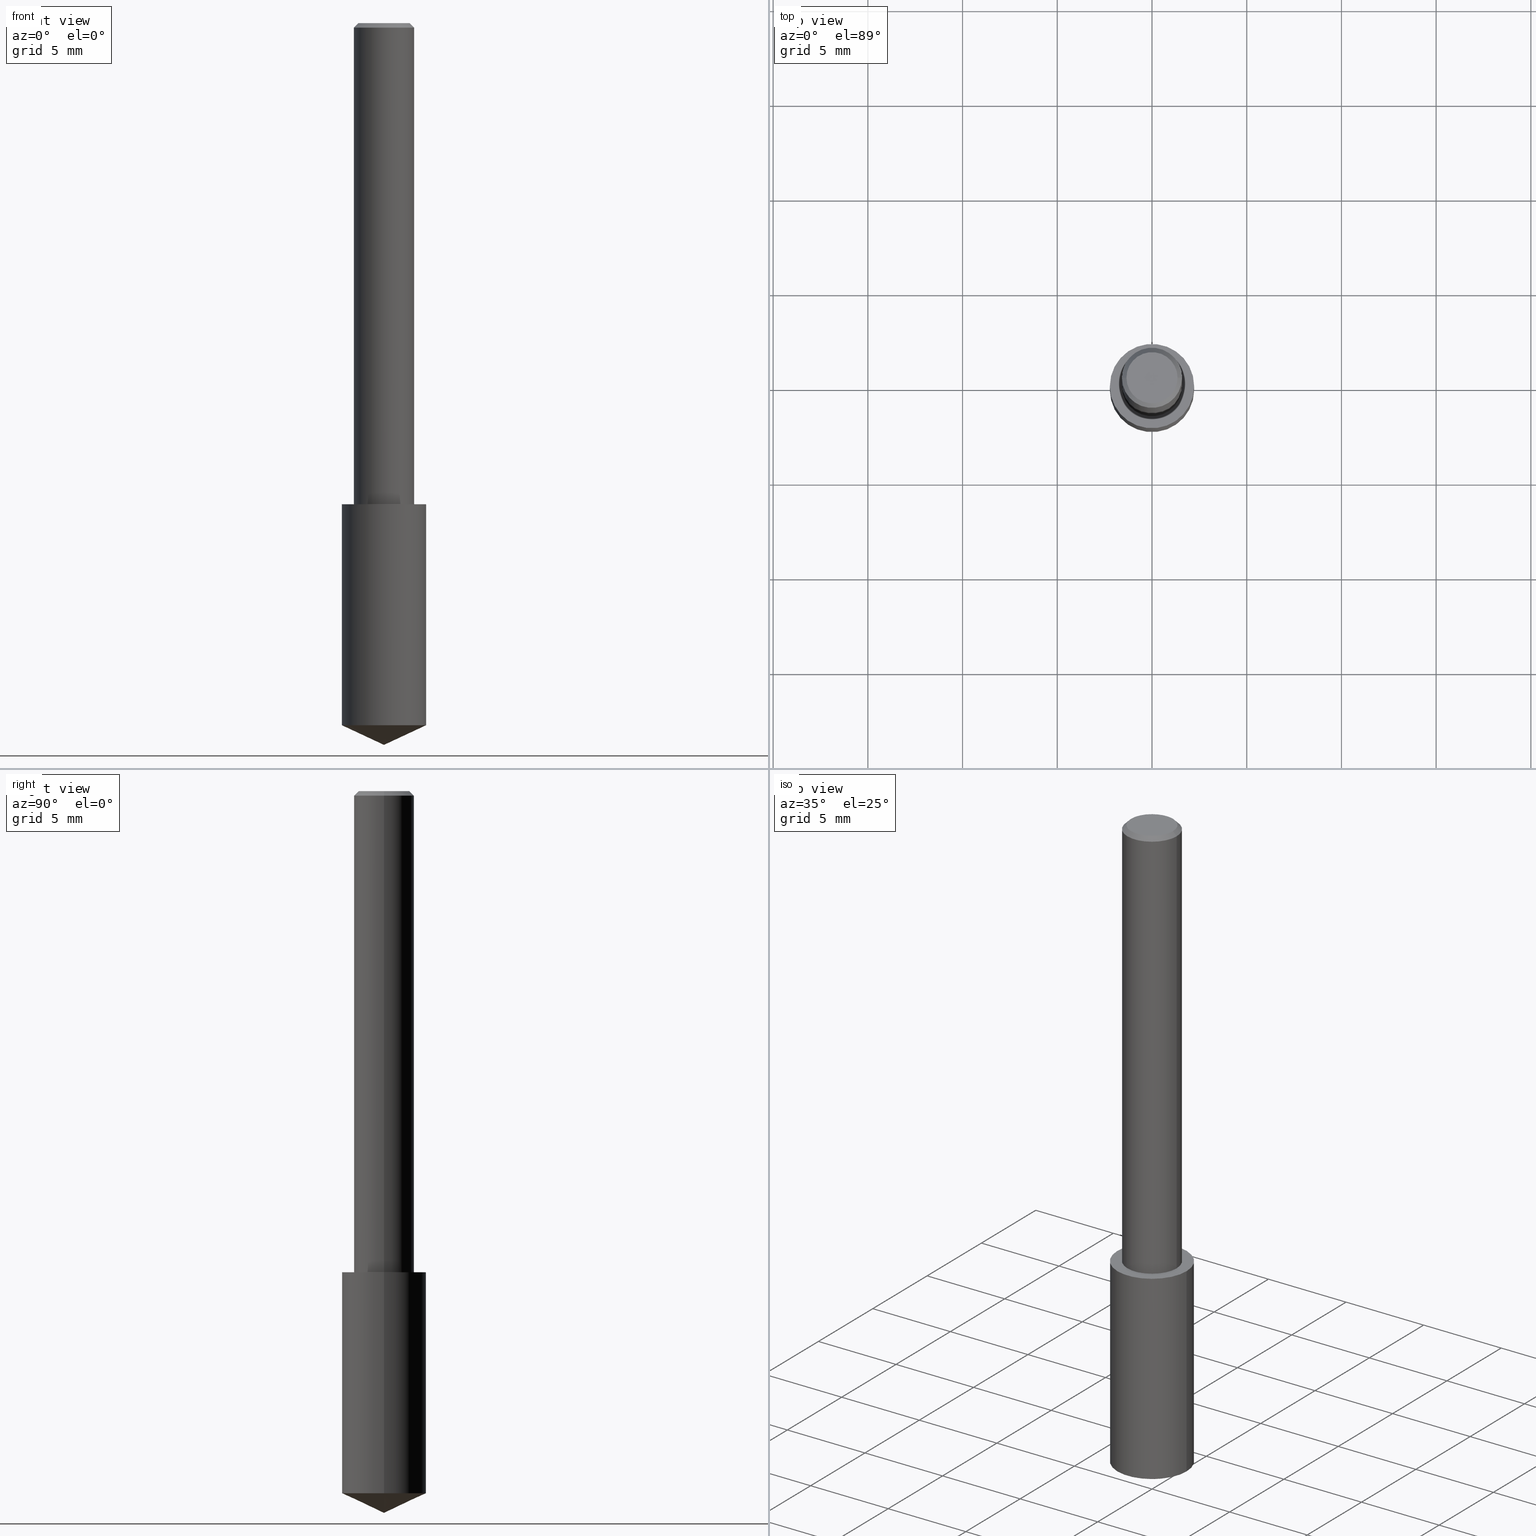
[diagram: canonical four-view strip — front | top / right | iso, engineering-drawing reading convention]
A machine part, canonical four-view strip (front | top / right | iso — engineering-drawing reading convention). The complete STEP part file that produces these views, byte-faithful:
ISO-10303-21;
HEADER;
FILE_DESCRIPTION (( 'STEP AP203' ),
    '1' );
FILE_NAME ('06111.STEP',
    '2024-04-30T18:21:00',
    ( '' ),
    ( '' ),
    'SwSTEP 2.0',
    'SolidWorks 2023',
    '' );
FILE_SCHEMA (( 'CONFIG_CONTROL_DESIGN' ));
ENDSEC;

DATA;
#1 = CARTESIAN_POINT ( 'NONE',  ( 0.05312499999999999861, -4.129888592719939842E-16, 3.061617000609493422E-21 ) ) ;
#2 = CALENDAR_DATE ( 2024, 30, 4 ) ;
#3 = PLANE ( 'NONE',  #82 ) ;
#4 = AXIS2_PLACEMENT_3D ( 'NONE', #339, #28, #138 ) ;
#5 = DIRECTION ( 'NONE',  ( -2.445468806185136597E-29, 3.491481338843145583E-15, 1.000000000000000000 ) ) ;
#6 = EDGE_CURVE ( 'NONE', #238, #34, #187, .T. ) ;
#7 = PERSON_AND_ORGANIZATION ( #33, #151 ) ;
#8 = CARTESIAN_POINT ( 'NONE',  ( 0.08759999999999999731, -4.103188869408462916E-15, -1.000000000000000222 ) ) ;
#9 = ADVANCED_FACE ( 'NONE', ( #156 ), #109, .T. ) ;
#10 = ORIENTED_EDGE ( 'NONE', *, *, #300, .T. ) ;
#11 = CONICAL_SURFACE ( 'NONE', #294, 84.42940631927488937, 1.134464013796318449 ) ;
#12 = ORIENTED_EDGE ( 'NONE', *, *, #62, .F. ) ;
#13 = CIRCLE ( 'NONE', #236, 0.06250000000000000000 ) ;
#14 = CC_DESIGN_APPROVAL ( #330, ( #118 ) ) ;
#15 = PRODUCT_DEFINITION ( 'UNKNOWN', '', #144, #289 ) ;
#16 = ORIENTED_EDGE ( 'NONE', *, *, #117, .F. ) ;
#17 = DIRECTION ( 'NONE',  ( -2.445468806185136877E-29, 3.491481338843145188E-15, 1.000000000000000000 ) ) ;
#18 = CARTESIAN_POINT ( 'NONE',  ( -0.08759999999999995568, -4.472164618712027230E-15, -1.459151449145622781 ) ) ;
#19 = DIRECTION ( 'NONE',  ( 1.000000000000000000, -6.982962677686269077E-15, 0.000000000000000000 ) ) ;
#20 = ORIENTED_EDGE ( 'NONE', *, *, #185, .T. ) ;
#21 = CARTESIAN_POINT ( 'NONE',  ( 0.06250000000000006939, -4.364351673553921624E-16, 3.047610484872463374E-30 ) ) ;
#22 = ORIENTED_EDGE ( 'NONE', *, *, #64, .T. ) ;
#23 = APPROVAL_STATUS ( 'not_yet_approved' ) ;
#24 = EDGE_CURVE ( 'NONE', #59, #124, #248, .T. ) ;
#25 = AXIS2_PLACEMENT_3D ( 'NONE', #91, #143, #315 ) ;
#26 = FACE_OUTER_BOUND ( 'NONE', #283, .T. ) ;
#27 = PLANE ( 'NONE',  #57 ) ;
#28 = DIRECTION ( 'NONE',  ( -2.445468806185136597E-29, 3.491481338843145583E-15, 1.000000000000000000 ) ) ;
#29 = DIRECTION ( 'NONE',  ( 1.000000000000000000, -6.982962677686266711E-15, 4.876176775795935793E-29 ) ) ;
#30 = VECTOR ( 'NONE', #17, 39.37007874015748143 ) ;
#31 = AXIS2_PLACEMENT_3D ( 'NONE', #288, #81, #252 ) ;
#32 = EDGE_LOOP ( 'NONE', ( #121, #100, #55, #194 ) ) ;
#33 = PERSON ( 'UNSPECIFIED', 'UNSPECIFIED', 'UNSPECIFIED', ('UNSPECIFIED'), ('UNSPECIFIED'), ('UNSPECIFIED') ) ;
#34 = VERTEX_POINT ( 'NONE', #105 ) ;
#35 = AXIS2_PLACEMENT_3D ( 'NONE', #312, #314, #293 ) ;
#36 = AXIS2_PLACEMENT_3D ( 'NONE', #301, #97, #275 ) ;
#37 = ADVANCED_FACE ( 'NONE', ( #78 ), #320, .T. ) ;
#38 = CLOSED_SHELL ( 'NONE', ( #245, #193, #166, #67, #213 ) ) ;
#39 = APPROVAL_DATE_TIME ( #268, #287 ) ;
#40 = AXIS2_PLACEMENT_3D ( 'NONE', #243, #223, #305 ) ;
#41 = ORIENTED_EDGE ( 'NONE', *, *, #101, .F. ) ;
#42 = EDGE_CURVE ( 'NONE', #126, #34, #115, .T. ) ;
#43 = LINE ( 'NONE', #21, #47 ) ;
#44 = DIRECTION ( 'NONE',  ( -2.445468806185136597E-29, 3.491481338843145583E-15, 1.000000000000000000 ) ) ;
#45 = EDGE_LOOP ( 'NONE', ( #149, #215, #133, #16 ) ) ;
#46 = VERTEX_POINT ( 'NONE', #89 ) ;
#47 = VECTOR ( 'NONE', #147, 39.37007874015748143 ) ;
#48 = EDGE_LOOP ( 'NONE', ( #114, #119, #198 ) ) ;
#49 = CARTESIAN_POINT ( 'NONE',  ( 3.534303999157150341E-29, -1.932207369856694320E-15, -1.000000000000000222 ) ) ;
#50 = LINE ( 'NONE', #222, #191 ) ;
#51 = EDGE_CURVE ( 'NONE', #219, #126, #161, .T. ) ;
#52 = SECURITY_CLASSIFICATION_LEVEL ( 'unclassified' ) ;
#53 = AXIS2_PLACEMENT_3D ( 'NONE', #272, #132, #218 ) ;
#54 = DIRECTION ( 'NONE',  ( -1.000000000000000000, 6.982962677686265922E-15, -4.876176775795935793E-29 ) ) ;
#55 = ORIENTED_EDGE ( 'NONE', *, *, #24, .T. ) ;
#56 = CARTESIAN_POINT ( 'NONE',  ( 2.292627005798580623E-31, -3.273263755165470184E-17, -0.009375000000000060368 ) ) ;
#57 = AXIS2_PLACEMENT_3D ( 'NONE', #324, #69, #71 ) ;
#58 = DIRECTION ( 'NONE',  ( -2.445468806185136597E-29, 3.491481338843145583E-15, 1.000000000000000000 ) ) ;
#59 = VERTEX_POINT ( 'NONE', #163 ) ;
#60 = FACE_OUTER_BOUND ( 'NONE', #45, .T. ) ;
#61 = ORIENTED_EDGE ( 'NONE', *, *, #42, .F. ) ;
#62 = EDGE_CURVE ( 'NONE', #173, #59, #137, .T. ) ;
#63 = ORIENTED_EDGE ( 'NONE', *, *, #24, .F. ) ;
#64 = EDGE_CURVE ( 'NONE', #46, #173, #122, .T. ) ;
#65 = LENGTH_MEASURE_WITH_UNIT ( LENGTH_MEASURE( 0.02539999999999999897 ), #332 );
#66 =( CONVERSION_BASED_UNIT ( 'INCH', #65 ) LENGTH_UNIT ( ) NAMED_UNIT ( #278 ) );
#67 = ADVANCED_FACE ( 'NONE', ( #60 ), #96, .T. ) ;
#68 = AXIS2_PLACEMENT_3D ( 'NONE', #299, #242, #325 ) ;
#69 = DIRECTION ( 'NONE',  ( -2.438088387897960049E-29, 3.491481338843145188E-15, 1.000000000000000000 ) ) ;
#70 = CYLINDRICAL_SURFACE ( 'NONE', #36, 0.08759999999999999731 ) ;
#71 = DIRECTION ( 'NONE',  ( 1.000000000000000000, -6.982962677686265922E-15, 4.876176775795935793E-29 ) ) ;
#72 = LINE ( 'NONE', #186, #159 ) ;
#73 = ORIENTED_EDGE ( 'NONE', *, *, #206, .F. ) ;
#74 = EDGE_LOOP ( 'NONE', ( #10, #94, #63, #262 ) ) ;
#75 = VECTOR ( 'NONE', #210, 39.37007874015748143 ) ;
#76 = LOCAL_TIME ( 14, 21, 0.000000000000000000, #338 ) ;
#77 = EDGE_CURVE ( 'NONE', #173, #46, #141, .T. ) ;
#78 = FACE_OUTER_BOUND ( 'NONE', #183, .T. ) ;
#79 = PERSON_AND_ORGANIZATION ( #33, #151 ) ;
#80 = DIRECTION ( 'NONE',  ( -1.000000000000000000, 6.982962677686266711E-15, 0.000000000000000000 ) ) ;
#81 = DIRECTION ( 'NONE',  ( 2.445468806185136597E-29, -3.491481338843145583E-15, -1.000000000000000000 ) ) ;
#82 = AXIS2_PLACEMENT_3D ( 'NONE', #178, #112, #54 ) ;
#83 = LINE ( 'NONE', #102, #273 ) ;
#84 = DATE_AND_TIME ( #309, #76 ) ;
#85 = APPROVAL_DATE_TIME ( #84, #259 ) ;
#86 = CARTESIAN_POINT ( 'NONE',  ( 2.445468806185136877E-29, -3.491481338843145977E-15, -1.000000000000000222 ) ) ;
#87 = DIRECTION ( 'NONE',  ( 2.445468806185136597E-29, -3.491481338843145583E-15, -1.000000000000000000 ) ) ;
#88 = ORIENTED_EDGE ( 'NONE', *, *, #6, .T. ) ;
#89 = CARTESIAN_POINT ( 'NONE',  ( -0.05312499999999999861, 3.873362110279099094E-16, 3.061616995216862494E-21 ) ) ;
#90 = VERTEX_POINT ( 'NONE', #227 ) ;
#91 = CARTESIAN_POINT ( 'NONE',  ( 0.000000000000000000, 0.000000000000000000, 0.000000000000000000 ) ) ;
#92 = LINE ( 'NONE', #125, #95 ) ;
#93 = DIRECTION ( 'NONE',  ( -0.7071067811865453523, 2.468850131082234184E-15, -0.7071067811865496822 ) ) ;
#94 = ORIENTED_EDGE ( 'NONE', *, *, #267, .T. ) ;
#95 = VECTOR ( 'NONE', #298, 39.37007874015748143 ) ;
#96 = CYLINDRICAL_SURFACE ( 'NONE', #328, 0.08759999999999999731 ) ;
#97 = DIRECTION ( 'NONE',  ( -2.445468806185136597E-29, 3.491481338843145583E-15, 1.000000000000000000 ) ) ;
#98 = ORIENTED_EDGE ( 'NONE', *, *, #206, .T. ) ;
#99 = ORIENTED_EDGE ( 'NONE', *, *, #267, .F. ) ;
#100 = ORIENTED_EDGE ( 'NONE', *, *, #62, .T. ) ;
#101 = EDGE_CURVE ( 'NONE', #124, #59, #13, .T. ) ;
#102 = CARTESIAN_POINT ( 'NONE',  ( 3.668203209277704895E-29, -5.237222008264718177E-15, -1.500000000000000222 ) ) ;
#103 = DIRECTION ( 'NONE',  ( 1.000000000000000000, -6.982962677686266711E-15, 0.000000000000000000 ) ) ;
#104 = AXIS2_PLACEMENT_3D ( 'NONE', #306, #87, #80 ) ;
#105 = CARTESIAN_POINT ( 'NONE',  ( -0.08759999999999999731, -3.670605260514662288E-15, -1.000000000000000222 ) ) ;
#106 = AXIS2_PLACEMENT_3D ( 'NONE', #49, #220, #195 ) ;
#107 = DIRECTION ( 'NONE',  ( -0.9063077870366517130, 7.915267918739014631E-15, 0.4226182617406955555 ) ) ;
#108 = ADVANCED_FACE ( 'NONE', ( #207 ), #264, .T. ) ;
#109 = CYLINDRICAL_SURFACE ( 'NONE', #217, 0.06250000000000006939 ) ;
#110 = PERSON_AND_ORGANIZATION ( #33, #151 ) ;
#111 = SHAPE_DEFINITION_REPRESENTATION ( #263, #331 ) ;
#112 = DIRECTION ( 'NONE',  ( 2.438088387897960049E-29, -3.491481338843145188E-15, -1.000000000000000000 ) ) ;
#113 = CC_DESIGN_PERSON_AND_ORGANIZATION_ASSIGNMENT ( #7, #135, ( #144 ) ) ;
#114 = ORIENTED_EDGE ( 'NONE', *, *, #170, .F. ) ;
#115 = CIRCLE ( 'NONE', #302, 0.08759999999999999731 ) ;
#116 = ADVANCED_FACE ( 'NONE', ( #226 ), #3, .F. ) ;
#117 = EDGE_CURVE ( 'NONE', #34, #126, #307, .T. ) ;
#118 = SECURITY_CLASSIFICATION ( '', '', #52 ) ;
#119 = ORIENTED_EDGE ( 'NONE', *, *, #146, .T. ) ;
#120 = PERSON_AND_ORGANIZATION_ROLE ( 'design_owner' ) ;
#121 = ORIENTED_EDGE ( 'NONE', *, *, #77, .F. ) ;
#122 = CIRCLE ( 'NONE', #35, 0.05312499999999999861 ) ;
#123 = CC_DESIGN_APPROVAL ( #259, ( #144 ) ) ;
#124 = VERTEX_POINT ( 'NONE', #229 ) ;
#125 = CARTESIAN_POINT ( 'NONE',  ( -0.06250000000000006939, 4.440892098500631092E-16, -3.074334431409319267E-30 ) ) ;
#126 = VERTEX_POINT ( 'NONE', #8 ) ;
#127 = ADVANCED_FACE ( 'NONE', ( #182 ), #237, .T. ) ;
#128 = FACE_OUTER_BOUND ( 'NONE', #334, .T. ) ;
#129 = ORIENTED_EDGE ( 'NONE', *, *, #146, .F. ) ;
#130 = PERSON_AND_ORGANIZATION ( #33, #151 ) ;
#131 = MECHANICAL_CONTEXT ( 'NONE', #319, 'mechanical' ) ;
#132 = DIRECTION ( 'NONE',  ( -2.445468806185136597E-29, 3.491481338843145583E-15, 1.000000000000000000 ) ) ;
#133 = ORIENTED_EDGE ( 'NONE', *, *, #51, .T. ) ;
#134 = PERSON_AND_ORGANIZATION_ROLE ( 'creator' ) ;
#135 = PERSON_AND_ORGANIZATION_ROLE ( 'design_supplier' ) ;
#136 = DIRECTION ( 'NONE',  ( -2.445468806185136597E-29, 3.491481338843145583E-15, 1.000000000000000000 ) ) ;
#137 = LINE ( 'NONE', #260, #296 ) ;
#138 = DIRECTION ( 'NONE',  ( 1.000000000000000000, -6.982962677686266711E-15, 4.876176628004948512E-29 ) ) ;
#139 = APPROVAL_PERSON_ORGANIZATION ( #110, #330, #285 ) ;
#140 = FACE_OUTER_BOUND ( 'NONE', #48, .T. ) ;
#141 = CIRCLE ( 'NONE', #4, 0.05312499999999999861 ) ;
#142 =( GEOMETRIC_REPRESENTATION_CONTEXT ( 3 ) GLOBAL_UNCERTAINTY_ASSIGNED_CONTEXT ( ( #322 ) ) GLOBAL_UNIT_ASSIGNED_CONTEXT ( ( #66, #292, #317 ) ) REPRESENTATION_CONTEXT ( 'NONE', 'WORKASPACE' ) );
#143 = DIRECTION ( 'NONE',  ( -2.445468806185136597E-29, 3.491481338843145583E-15, 1.000000000000000000 ) ) ;
#144 = PRODUCT_DEFINITION_FORMATION_WITH_SPECIFIED_SOURCE ( 'ANY', '', #255, .NOT_KNOWN. ) ;
#145 = EDGE_LOOP ( 'NONE', ( #295, #265 ) ) ;
#146 = EDGE_CURVE ( 'NONE', #316, #219, #83, .T. ) ;
#147 = DIRECTION ( 'NONE',  ( -2.445468806185136877E-29, 3.491481338843145188E-15, 1.000000000000000000 ) ) ;
#148 = CARTESIAN_POINT ( 'NONE',  ( -0.08759999999999999731, -2.869045902317298924E-15, -1.000000000000000222 ) ) ;
#149 = ORIENTED_EDGE ( 'NONE', *, *, #6, .F. ) ;
#150 = CC_DESIGN_DATE_AND_TIME_ASSIGNMENT ( #200, #281, ( #15 ) ) ;
#151 = ORGANIZATION ( 'UNSPECIFIED', 'UNSPECIFIED', '' ) ;
#152 = ORIENTED_EDGE ( 'NONE', *, *, #101, .T. ) ;
#153 = PLANE ( 'NONE',  #106 ) ;
#154 = CARTESIAN_POINT ( 'NONE',  ( 3.668203209277704895E-29, -5.237222008264718177E-15, -1.500000000000000222 ) ) ;
#155 = CARTESIAN_POINT ( 'NONE',  ( -0.06250000000000012490, -1.318017778347335489E-15, -1.000000000000000222 ) ) ;
#156 = FACE_OUTER_BOUND ( 'NONE', #74, .T. ) ;
#157 = CARTESIAN_POINT ( 'NONE',  ( 2.292627005798580623E-31, -3.273263755165470184E-17, -0.009375000000000060368 ) ) ;
#158 = CARTESIAN_POINT ( 'NONE',  ( 2.445468806185137438E-29, -3.491481338843146371E-15, -1.000000000000000222 ) ) ;
#159 = VECTOR ( 'NONE', #93, 39.37007874015748143 ) ;
#160 = DIRECTION ( 'NONE',  ( -2.445468806185136597E-29, 3.491481338843145583E-15, 1.000000000000000000 ) ) ;
#161 = LINE ( 'NONE', #261, #75 ) ;
#162 = ORIENTED_EDGE ( 'NONE', *, *, #290, .T. ) ;
#163 = CARTESIAN_POINT ( 'NONE',  ( 0.06250000000000000000, -4.691678049070463404E-16, -0.009375000000000060368 ) ) ;
#164 = APPROVAL_PERSON_ORGANIZATION ( #282, #259, #203 ) ;
#165 = CALENDAR_DATE ( 2024, 30, 4 ) ;
#166 = ADVANCED_FACE ( 'NONE', ( #140 ), #11, .T. ) ;
#167 = CIRCLE ( 'NONE', #53, 0.08759999999999999731 ) ;
#168 = ORIENTED_EDGE ( 'NONE', *, *, #170, .T. ) ;
#169 = CC_DESIGN_PERSON_AND_ORGANIZATION_ASSIGNMENT ( #130, #201, ( #15 ) ) ;
#170 = EDGE_CURVE ( 'NONE', #316, #238, #50, .T. ) ;
#171 = DIRECTION ( 'NONE',  ( 1.000000000000000000, -6.982962677686264344E-15, 0.000000000000000000 ) ) ;
#172 = CIRCLE ( 'NONE', #228, 0.06250000000000012490 ) ;
#173 = VERTEX_POINT ( 'NONE', #1 ) ;
#174 = COORDINATED_UNIVERSAL_TIME_OFFSET ( 5, 0, .BEHIND. ) ;
#175 = DIRECTION ( 'NONE',  ( -2.445468806185136597E-29, 3.491481338843145583E-15, 1.000000000000000000 ) ) ;
#176 = APPROVAL_STATUS ( 'not_yet_approved' ) ;
#177 = CALENDAR_DATE ( 2024, 30, 4 ) ;
#178 = CARTESIAN_POINT ( 'NONE',  ( -3.743544432386672853E-50, 5.344789307371238476E-36, 1.530808498934197599E-21 ) ) ;
#179 = CONICAL_SURFACE ( 'NONE', #40, 84.42940631927488937, 1.134464013796318449 ) ;
#180 = PERSON_AND_ORGANIZATION_ROLE ( 'classification_officer' ) ;
#181 = PERSON_AND_ORGANIZATION ( #33, #151 ) ;
#182 = FACE_OUTER_BOUND ( 'NONE', #32, .T. ) ;
#183 = EDGE_LOOP ( 'NONE', ( #99, #20, #323, #41 ) ) ;
#184 = VERTEX_POINT ( 'NONE', #155 ) ;
#185 = EDGE_CURVE ( 'NONE', #184, #90, #172, .T. ) ;
#186 = CARTESIAN_POINT ( 'NONE',  ( -0.06250000000000000000, 4.037025298037369984E-16, -0.009375000000000060368 ) ) ;
#187 = LINE ( 'NONE', #148, #30 ) ;
#188 = COORDINATED_UNIVERSAL_TIME_OFFSET ( 5, 0, .BEHIND. ) ;
#189 = APPROVAL_ROLE ( '' ) ;
#190 = CLOSED_SHELL ( 'NONE', ( #127, #9, #199, #37, #108, #116 ) ) ;
#191 = VECTOR ( 'NONE', #107, 39.37007874015748143 ) ;
#192 = ORIENTED_EDGE ( 'NONE', *, *, #64, .F. ) ;
#193 = ADVANCED_FACE ( 'NONE', ( #26 ), #179, .T. ) ;
#194 = ORIENTED_EDGE ( 'NONE', *, *, #290, .F. ) ;
#195 = DIRECTION ( 'NONE',  ( -1.000000000000000000, 6.982962677686265922E-15, -4.876176775795935793E-29 ) ) ;
#196 = EDGE_LOOP ( 'NONE', ( #12, #192, #162, #152 ) ) ;
#197 = CC_DESIGN_APPROVAL ( #287, ( #15 ) ) ;
#198 = ORIENTED_EDGE ( 'NONE', *, *, #247, .F. ) ;
#199 = ADVANCED_FACE ( 'NONE', ( #251 ), #27, .F. ) ;
#200 = DATE_AND_TIME ( #318, #214 ) ;
#201 = PERSON_AND_ORGANIZATION_ROLE ( 'creator' ) ;
#202 = DIRECTION ( 'NONE',  ( 1.000000000000000000, -6.982962677686266711E-15, 0.000000000000000000 ) ) ;
#203 = APPROVAL_ROLE ( '' ) ;
#204 = AXIS2_PLACEMENT_3D ( 'NONE', #86, #5, #257 ) ;
#205 = LOCAL_TIME ( 14, 21, 0.000000000000000000, #246 ) ;
#206 = EDGE_CURVE ( 'NONE', #219, #238, #167, .T. ) ;
#207 = FACE_OUTER_BOUND ( 'NONE', #196, .T. ) ;
#208 = DIRECTION ( 'NONE',  ( 0.7071067811865453523, -7.319954787623248157E-15, -0.7071067811865496822 ) ) ;
#209 = DATE_TIME_ROLE ( 'classification_date' ) ;
#210 = DIRECTION ( 'NONE',  ( -2.445468806185136877E-29, 3.491481338843145188E-15, 1.000000000000000000 ) ) ;
#211 = MANIFOLD_SOLID_BREP ( 'Body-Move/Copy2[2]', #190 ) ;
#212 = MANIFOLD_SOLID_BREP ( 'Body-Move/Copy2[1]', #38 ) ;
#213 = ADVANCED_FACE ( 'NONE', ( #279 ), #153, .F. ) ;
#214 = LOCAL_TIME ( 14, 21, 0.000000000000000000, #174 ) ;
#215 = ORIENTED_EDGE ( 'NONE', *, *, #247, .T. ) ;
#216 = APPLICATION_PROTOCOL_DEFINITION ( 'international standard', 'config_control_design', 1994, #231 ) ;
#217 = AXIS2_PLACEMENT_3D ( 'NONE', #335, #277, #29 ) ;
#218 = DIRECTION ( 'NONE',  ( 1.000000000000000000, -6.982962677686269077E-15, 0.000000000000000000 ) ) ;
#219 = VERTEX_POINT ( 'NONE', #327 ) ;
#220 = DIRECTION ( 'NONE',  ( 2.438088387897960049E-29, -3.491481338843145188E-15, -1.000000000000000000 ) ) ;
#221 = ORIENTED_EDGE ( 'NONE', *, *, #51, .F. ) ;
#222 = CARTESIAN_POINT ( 'NONE',  ( 3.668203209277704895E-29, -5.237222008264718177E-15, -1.500000000000000222 ) ) ;
#223 = DIRECTION ( 'NONE',  ( -2.445468806185136597E-29, 3.491481338843145583E-15, 1.000000000000000000 ) ) ;
#224 = EDGE_CURVE ( 'NONE', #90, #59, #43, .T. ) ;
#225 = COORDINATED_UNIVERSAL_TIME_OFFSET ( 5, 0, .BEHIND. ) ;
#226 = FACE_OUTER_BOUND ( 'NONE', #239, .T. ) ;
#227 = CARTESIAN_POINT ( 'NONE',  ( 0.06250000000000012490, -3.927916506198539224E-15, -1.000000000000000222 ) ) ;
#228 = AXIS2_PLACEMENT_3D ( 'NONE', #158, #175, #280 ) ;
#229 = CARTESIAN_POINT ( 'NONE',  ( -0.06250000000000000000, -1.318017778347336672E-15, -0.009375000000000060368 ) ) ;
#230 = ORIENTED_EDGE ( 'NONE', *, *, #117, .T. ) ;
#231 = APPLICATION_CONTEXT ( 'configuration controlled 3d designs of mechanical parts and assemblies' ) ;
#232 = AXIS2_PLACEMENT_3D ( 'NONE', #269, #44, #171 ) ;
#233 = CIRCLE ( 'NONE', #258, 0.08759999999999999731 ) ;
#234 = CC_DESIGN_PERSON_AND_ORGANIZATION_ASSIGNMENT ( #79, #134, ( #144 ) ) ;
#235 = CC_DESIGN_PERSON_AND_ORGANIZATION_ASSIGNMENT ( #181, #180, ( #118 ) ) ;
#236 = AXIS2_PLACEMENT_3D ( 'NONE', #56, #160, #202 ) ;
#237 = CONICAL_SURFACE ( 'NONE', #31, 0.06250000000000000000, 0.7853981633974452814 ) ;
#238 = VERTEX_POINT ( 'NONE', #18 ) ;
#239 = EDGE_LOOP ( 'NONE', ( #22, #241 ) ) ;
#240 = CIRCLE ( 'NONE', #232, 0.06250000000000012490 ) ;
#241 = ORIENTED_EDGE ( 'NONE', *, *, #77, .T. ) ;
#242 = DIRECTION ( 'NONE',  ( 0.000000000000000000, 0.000000000000000000, 1.000000000000000000 ) ) ;
#243 = CARTESIAN_POINT ( 'NONE',  ( -9.261009624683002666E-28, 1.322226732217803884E-13, 37.87007874015748143 ) ) ;
#244 = EDGE_LOOP ( 'NONE', ( #276, #230 ) ) ;
#245 = ADVANCED_FACE ( 'NONE', ( #128 ), #70, .T. ) ;
#246 = COORDINATED_UNIVERSAL_TIME_OFFSET ( 5, 0, .BEHIND. ) ;
#247 = EDGE_CURVE ( 'NONE', #238, #219, #233, .T. ) ;
#248 = CIRCLE ( 'NONE', #256, 0.06250000000000000000 ) ;
#249 = APPROVAL_PERSON_ORGANIZATION ( #326, #287, #189 ) ;
#250 = CARTESIAN_POINT ( 'NONE',  ( 2.445468806185137438E-29, -3.491481338843146371E-15, -1.000000000000000222 ) ) ;
#251 = FACE_OUTER_BOUND ( 'NONE', #145, .T. ) ;
#252 = DIRECTION ( 'NONE',  ( -1.000000000000000000, 6.982962677686266711E-15, 0.000000000000000000 ) ) ;
#253 = DATE_AND_TIME ( #177, #205 ) ;
#254 = PERSON_AND_ORGANIZATION ( #33, #151 ) ;
#255 = PRODUCT ( '06111', '06111', '', ( #131 ) ) ;
#256 = AXIS2_PLACEMENT_3D ( 'NONE', #157, #336, #340 ) ;
#257 = DIRECTION ( 'NONE',  ( 1.000000000000000000, -6.982962677686269077E-15, 0.000000000000000000 ) ) ;
#258 = AXIS2_PLACEMENT_3D ( 'NONE', #297, #333, #19 ) ;
#259 = APPROVAL ( #23, 'UNSPECIFIED' ) ;
#260 = CARTESIAN_POINT ( 'NONE',  ( 0.06250000000000000000, -4.615137624123753937E-16, -0.009375000000000060368 ) ) ;
#261 = CARTESIAN_POINT ( 'NONE',  ( 0.08759999999999999731, -4.103188869408462916E-15, -1.000000000000000222 ) ) ;
#262 = ORIENTED_EDGE ( 'NONE', *, *, #224, .F. ) ;
#263 = PRODUCT_DEFINITION_SHAPE ( 'NONE', 'NONE',  #15 ) ;
#264 = CONICAL_SURFACE ( 'NONE', #104, 0.06250000000000000000, 0.7853981633974452814 ) ;
#265 = ORIENTED_EDGE ( 'NONE', *, *, #185, .F. ) ;
#266 = CC_DESIGN_PERSON_AND_ORGANIZATION_ASSIGNMENT ( #254, #120, ( #255 ) ) ;
#267 = EDGE_CURVE ( 'NONE', #184, #124, #92, .T. ) ;
#268 = DATE_AND_TIME ( #165, #321 ) ;
#269 = CARTESIAN_POINT ( 'NONE',  ( 2.445468806185137438E-29, -3.491481338843146371E-15, -1.000000000000000222 ) ) ;
#270 = APPLICATION_PROTOCOL_DEFINITION ( 'international standard', 'config_control_design', 1994, #319 ) ;
#271 = APPROVAL_STATUS ( 'not_yet_approved' ) ;
#272 = CARTESIAN_POINT ( 'NONE',  ( 3.568309352385458231E-29, -5.094600055237875073E-15, -1.459151449145622781 ) ) ;
#273 = VECTOR ( 'NONE', #308, 39.37007874015748143 ) ;
#274 = CC_DESIGN_DATE_AND_TIME_ASSIGNMENT ( #311, #209, ( #118 ) ) ;
#275 = DIRECTION ( 'NONE',  ( 1.000000000000000000, -6.982962677686263555E-15, 0.000000000000000000 ) ) ;
#276 = ORIENTED_EDGE ( 'NONE', *, *, #42, .T. ) ;
#277 = DIRECTION ( 'NONE',  ( -2.445468806185136597E-29, 3.491481338843145583E-15, 1.000000000000000000 ) ) ;
#278 = DIMENSIONAL_EXPONENTS ( 1.000000000000000000, 0.000000000000000000, 0.000000000000000000, 0.000000000000000000, 0.000000000000000000, 0.000000000000000000, 0.000000000000000000 ) ;
#279 = FACE_OUTER_BOUND ( 'NONE', #244, .T. ) ;
#280 = DIRECTION ( 'NONE',  ( 1.000000000000000000, -6.982962677686264344E-15, 0.000000000000000000 ) ) ;
#281 = DATE_TIME_ROLE ( 'creation_date' ) ;
#282 = PERSON_AND_ORGANIZATION ( #33, #151 ) ;
#283 = EDGE_LOOP ( 'NONE', ( #129, #168, #73 ) ) ;
#284 = CARTESIAN_POINT ( 'NONE',  ( -9.261009624683002666E-28, 1.322226732217803884E-13, 37.87007874015748143 ) ) ;
#285 = APPROVAL_ROLE ( '' ) ;
#286 = DIRECTION ( 'NONE',  ( -2.445468806185136597E-29, 3.491481338843145583E-15, 1.000000000000000000 ) ) ;
#287 = APPROVAL ( #271, 'UNSPECIFIED' ) ;
#288 = CARTESIAN_POINT ( 'NONE',  ( 2.292627005798580623E-31, -3.273263755165470184E-17, -0.009375000000000060368 ) ) ;
#289 = DESIGN_CONTEXT ( 'detailed design', #231, 'design' ) ;
#290 = EDGE_CURVE ( 'NONE', #46, #124, #72, .T. ) ;
#291 = DIRECTION ( 'NONE',  ( 1.000000000000000000, -6.982962677686269077E-15, 0.000000000000000000 ) ) ;
#292 =( NAMED_UNIT ( * ) PLANE_ANGLE_UNIT ( ) SI_UNIT ( $, .RADIAN. ) );
#293 = DIRECTION ( 'NONE',  ( 1.000000000000000000, -6.982962677686266711E-15, 4.876176628004948512E-29 ) ) ;
#294 = AXIS2_PLACEMENT_3D ( 'NONE', #284, #136, #103 ) ;
#295 = ORIENTED_EDGE ( 'NONE', *, *, #300, .F. ) ;
#296 = VECTOR ( 'NONE', #208, 39.37007874015748143 ) ;
#297 = CARTESIAN_POINT ( 'NONE',  ( 3.568309352385458231E-29, -5.094600055237875073E-15, -1.459151449145622781 ) ) ;
#298 = DIRECTION ( 'NONE',  ( -2.445468806185136877E-29, 3.491481338843145188E-15, 1.000000000000000000 ) ) ;
#299 = CARTESIAN_POINT ( 'NONE',  ( 0.000000000000000000, 0.000000000000000000, 0.000000000000000000 ) ) ;
#300 = EDGE_CURVE ( 'NONE', #90, #184, #240, .T. ) ;
#301 = CARTESIAN_POINT ( 'NONE',  ( 2.445468806185137438E-29, -3.491481338843146371E-15, -1.000000000000000222 ) ) ;
#302 = AXIS2_PLACEMENT_3D ( 'NONE', #313, #58, #291 ) ;
#303 = LOCAL_TIME ( 14, 21, 0.000000000000000000, #225 ) ;
#304 = APPROVAL_DATE_TIME ( #253, #330 ) ;
#305 = DIRECTION ( 'NONE',  ( 1.000000000000000000, -6.982962677686266711E-15, 0.000000000000000000 ) ) ;
#306 = CARTESIAN_POINT ( 'NONE',  ( 2.292627005798580623E-31, -3.273263755165470184E-17, -0.009375000000000060368 ) ) ;
#307 = CIRCLE ( 'NONE', #204, 0.08759999999999999731 ) ;
#308 = DIRECTION ( 'NONE',  ( 0.9063077870366517130, -4.853149677051405611E-15, 0.4226182617406955555 ) ) ;
#309 = CALENDAR_DATE ( 2024, 30, 4 ) ;
#310 = DIRECTION ( 'NONE',  ( 1.000000000000000000, -6.982962677686263555E-15, 0.000000000000000000 ) ) ;
#311 = DATE_AND_TIME ( #2, #303 ) ;
#312 = CARTESIAN_POINT ( 'NONE',  ( -7.487088864773345706E-50, 1.068957861474247695E-35, 3.061616997868395197E-21 ) ) ;
#313 = CARTESIAN_POINT ( 'NONE',  ( 2.445468806185136877E-29, -3.491481338843145977E-15, -1.000000000000000222 ) ) ;
#314 = DIRECTION ( 'NONE',  ( -2.445468806185136597E-29, 3.491481338843145583E-15, 1.000000000000000000 ) ) ;
#315 = DIRECTION ( 'NONE',  ( 1.000000000000000000, -6.982962677686266711E-15, 4.876176775795935793E-29 ) ) ;
#316 = VERTEX_POINT ( 'NONE', #154 ) ;
#317 =( NAMED_UNIT ( * ) SI_UNIT ( $, .STERADIAN. ) SOLID_ANGLE_UNIT ( ) );
#318 = CALENDAR_DATE ( 2024, 30, 4 ) ;
#319 = APPLICATION_CONTEXT ( 'configuration controlled 3d designs of mechanical parts and assemblies' ) ;
#320 = CYLINDRICAL_SURFACE ( 'NONE', #25, 0.06250000000000006939 ) ;
#321 = LOCAL_TIME ( 14, 21, 0.000000000000000000, #188 ) ;
#322 = UNCERTAINTY_MEASURE_WITH_UNIT (LENGTH_MEASURE( 1.000000000000000082E-05 ), #66, 'distance_accuracy_value', 'NONE');
#323 = ORIENTED_EDGE ( 'NONE', *, *, #224, .T. ) ;
#324 = CARTESIAN_POINT ( 'NONE',  ( 2.445468806185137438E-29, -3.491481338843146371E-15, -1.000000000000000222 ) ) ;
#325 = DIRECTION ( 'NONE',  ( 1.000000000000000000, 0.000000000000000000, 0.000000000000000000 ) ) ;
#326 = PERSON_AND_ORGANIZATION ( #33, #151 ) ;
#327 = CARTESIAN_POINT ( 'NONE',  ( 0.08759999999999995568, -5.706307585803191222E-15, -1.459151449145622781 ) ) ;
#328 = AXIS2_PLACEMENT_3D ( 'NONE', #250, #286, #310 ) ;
#329 = PRODUCT_RELATED_PRODUCT_CATEGORY ( 'detail', '', ( #255 ) ) ;
#330 = APPROVAL ( #176, 'UNSPECIFIED' ) ;
#331 = ADVANCED_BREP_SHAPE_REPRESENTATION ( '06111', ( #212, #211, #68 ), #142 ) ;
#332 =( LENGTH_UNIT ( ) NAMED_UNIT ( * ) SI_UNIT ( $, .METRE. ) );
#333 = DIRECTION ( 'NONE',  ( -2.445468806185136597E-29, 3.491481338843145583E-15, 1.000000000000000000 ) ) ;
#334 = EDGE_LOOP ( 'NONE', ( #98, #88, #61, #221 ) ) ;
#335 = CARTESIAN_POINT ( 'NONE',  ( 0.000000000000000000, 0.000000000000000000, 0.000000000000000000 ) ) ;
#336 = DIRECTION ( 'NONE',  ( -2.445468806185136597E-29, 3.491481338843145583E-15, 1.000000000000000000 ) ) ;
#337 = CC_DESIGN_SECURITY_CLASSIFICATION ( #118, ( #144 ) ) ;
#338 = COORDINATED_UNIVERSAL_TIME_OFFSET ( 5, 0, .BEHIND. ) ;
#339 = CARTESIAN_POINT ( 'NONE',  ( -7.487088864773345706E-50, 1.068957861474247695E-35, 3.061616997868395197E-21 ) ) ;
#340 = DIRECTION ( 'NONE',  ( 1.000000000000000000, -6.982962677686266711E-15, 0.000000000000000000 ) ) ;
ENDSEC;
END-ISO-10303-21;
